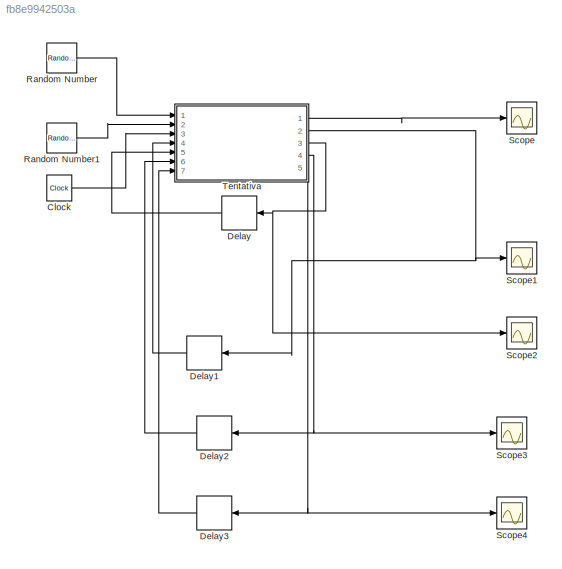
MODEL slx_fb8e9942503a
KIND model
CONFIG AbsTol = auto
CONFIG EnableMultiTasking = off
CONFIG FixedStep = auto
CONFIG MaxStep = auto
CONFIG MinStep = auto
CONFIG RelTol = 1e-3
CONFIG SampleTimeConstraint = Unconstrained
CONFIG Solver = VariableStepAuto
CONFIG SolverName = VariableStepAuto
CONFIG StartTime = 0.0
CONFIG StopTime = 10
BLOCK [Clock] Clock
  DisplayTime = on
BLOCK [Delay] Delay
  DelayLength = 1
  InitialCondition = 0
  InputPortMap = u0
  Ports = [1, 1]
BLOCK [Delay] Delay1
  DelayLength = 1
  InitialCondition = 0
  InputPortMap = u0
  Ports = [1, 1]
BLOCK [Delay] Delay2
  DelayLength = 1
  InitialCondition = 0
  InputPortMap = u0
  Ports = [1, 1]
BLOCK [Delay] Delay3
  DelayLength = 1
  InitialCondition = 0
  InputPortMap = u0
  Ports = [1, 1]
BLOCK [RandomNumber] Random Number
  SampleTime = 0.1
BLOCK [RandomNumber] Random Number1
  SampleTime = 0.1
BLOCK [Scope] Scope
  Floating = off
  NumInputPorts = 1
  Ports = [1]
  ScopeSpecificationString = Simulink.scopes.TimeScopeBlockCfg('CurrentConfiguration', extmgr.ConfigurationSet(extmgr.Configuration('Core','General UI',true),extmgr.Configuration('Core','Source UI',true),extmgr.Configuration('Sources','WiredSimulink',true),extmgr.Configuration('Visuals','Time Domain',true,'SerializedDisplays',{struct('MinYLimReal','-1.00000','MaxYLimReal','1.00000','YLabelReal','','MinYLimMag','0.00000','MaxY...<+1358ch>
BLOCK [Scope] Scope1
  Floating = off
  NumInputPorts = 1
  Ports = [1]
  ScopeSpecificationString = Simulink.scopes.TimeScopeBlockCfg('CurrentConfiguration', extmgr.ConfigurationSet(extmgr.Configuration('Core','General UI',true),extmgr.Configuration('Core','Source UI',true),extmgr.Configuration('Sources','WiredSimulink',true,'DataLoggingVariableName','ScopeData1'),extmgr.Configuration('Visuals','Time Domain',true,'SerializedDisplays',{struct('MinYLimReal','-0.09503','MaxYLimReal','1.11011','YLab...<+1423ch>
BLOCK [Scope] Scope2
  Floating = off
  NumInputPorts = 1
  Ports = [1]
  ScopeSpecificationString = Simulink.scopes.TimeScopeBlockCfg('CurrentConfiguration', extmgr.ConfigurationSet(extmgr.Configuration('Core','General UI',true),extmgr.Configuration('Core','Source UI',true),extmgr.Configuration('Sources','WiredSimulink',true,'DataLoggingVariableName','ScopeData2'),extmgr.Configuration('Visuals','Time Domain',true,'SerializedDisplays',{struct('MinYLimReal','-11318193.375','MaxYLimReal','105239760...<+1469ch>
BLOCK [Scope] Scope3
  Floating = off
  NumInputPorts = 1
  Ports = [1]
  ScopeSpecificationString = Simulink.scopes.TimeScopeBlockCfg('CurrentConfiguration', extmgr.ConfigurationSet(extmgr.Configuration('Core','General UI',true),extmgr.Configuration('Core','Source UI',true),extmgr.Configuration('Sources','WiredSimulink',true,'DataLoggingVariableName','ScopeData1'),extmgr.Configuration('Visuals','Time Domain',true,'SerializedDisplays',{struct('MinYLimReal','-11318193.375','MaxYLimReal','105239760...<+1469ch>
BLOCK [Scope] Scope4
  Floating = off
  NumInputPorts = 1
  Ports = [1]
  ScopeSpecificationString = Simulink.scopes.TimeScopeBlockCfg('CurrentConfiguration', extmgr.ConfigurationSet(extmgr.Configuration('Core','General UI',true),extmgr.Configuration('Core','Source UI',true),extmgr.Configuration('Sources','WiredSimulink',true,'DataLoggingVariableName','ScopeData2'),extmgr.Configuration('Visuals','Time Domain',true,'SerializedDisplays',{struct('MinYLimReal','0.1','MaxYLimReal','0.3','YLabelReal','...<+1389ch>
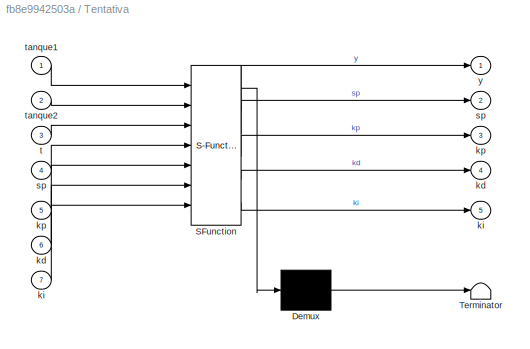
BLOCK [SubSystem] Tentativa
  ErrorFcn = Stateflow.Translate.translate
  PermitHierarchicalResolution = ExplicitOnly
  Ports = [7, 5]
  RequestExecContextInheritance = off
  SFBlockType = MATLAB Function
  TreatAsAtomicUnit = on
BLOCK [Demux] Tentativa/ Demux 
  Outputs = 1
  Ports = [1, 1]
BLOCK [S-Function] Tentativa/ SFunction 
  EnableBusSupport = on
  FunctionName = sf_sfun
  PortCounts = [7 6]
  Ports = [7, 6]
  SFcnIsStateOwnerBlock = off
  SFunctionDeploymentMode = off
  Tag = Stateflow S-Function 2
BLOCK [Terminator] Tentativa/ Terminator 
BLOCK [Outport] Tentativa/kd
  Port = 4
BLOCK [Inport] Tentativa/kd 
  Port = 6
BLOCK [Outport] Tentativa/ki
  Port = 5
BLOCK [Inport] Tentativa/ki 
  Port = 7
BLOCK [Outport] Tentativa/kp
  Port = 3
BLOCK [Inport] Tentativa/kp 
  Port = 5
BLOCK [Outport] Tentativa/sp
  Port = 2
BLOCK [Inport] Tentativa/sp 
  Port = 4
BLOCK [Inport] Tentativa/t
  Port = 3
BLOCK [Inport] Tentativa/tanque1
BLOCK [Inport] Tentativa/tanque2
  Port = 2
BLOCK [Outport] Tentativa/y
LINE Clock:1 -> Tentativa:3
LINE Delay1:1 -> Tentativa:4
LINE Delay2:1 -> Tentativa:6
LINE Delay3:1 -> Tentativa:7
LINE Delay:1 -> Tentativa:5
LINE Random Number1:1 -> Tentativa:2
LINE Random Number:1 -> Tentativa:1
LINE Tentativa:1 -> Scope:1
NET Tentativa:2 -> Delay1:1, Scope1:1
NET Tentativa:3 -> Delay:1, Scope2:1
NET Tentativa:4 -> Delay2:1, Scope3:1
NET Tentativa:5 -> Delay3:1, Scope4:1
note: NET lines group one-source signal fan-out (src -> all destinations, sorted); 1:1 wires keep LINE
CHART Tentativa states=1 transitions=1
  STATE_LABEL 'eML_blk_kernel()'
  STATE_LABEL 'SCRIPT:\nfunction [y,sp,kp, kd, ki]   = Conexao1(tanque1,tanque2,t,sp, kp, kd, ki)\ny = 0;\nsp  = sp;\nkp = kp; \nkd = kd;\nki = ki;\ncoder.extrinsic(\'py.T3.conexao\');\nif(mod(t,.2) == 0)\n   msg = char(py.T3.conexao(sprintf("%.4f",tanque1),sprintf("%.4f",tanque2)));\n   disp(msg)\n   sp = str2double(msg(6:13));\n   kp = str2double(msg(18:25));\n   kd = str2double(msg(30:37));\n   ki = str2double(msg((42:49)));...<+12ch>'
CHART  states=0 transitions=0
